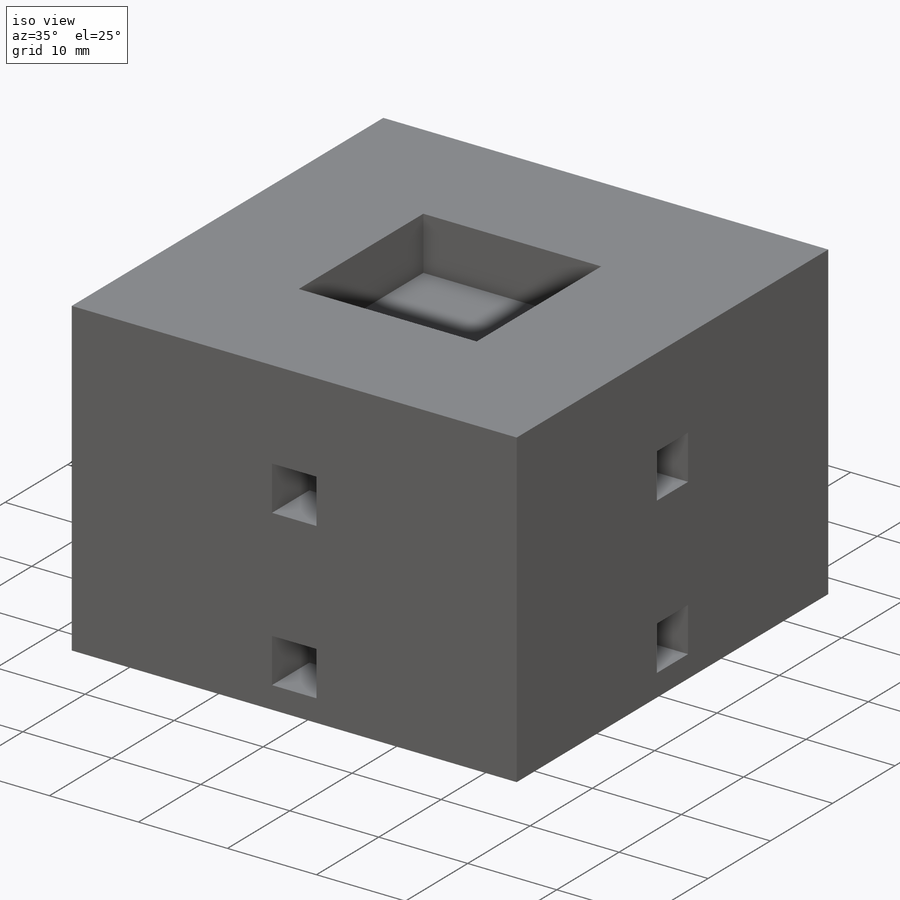
[diagram: iso view]
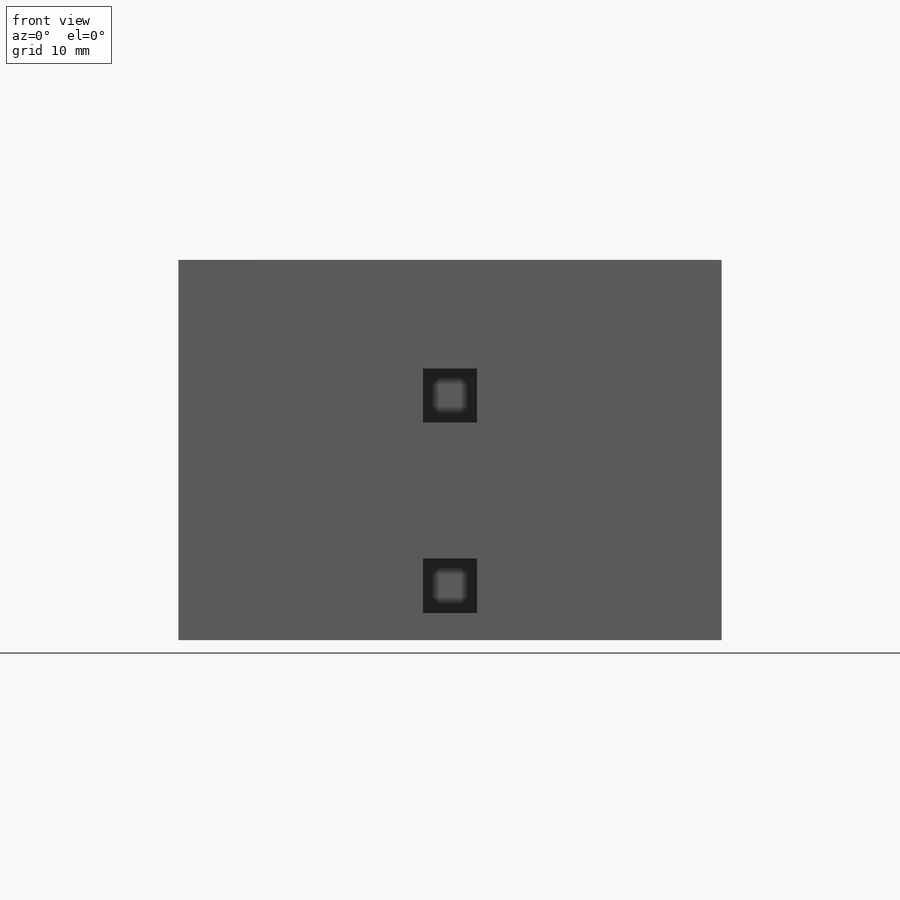
[diagram: front view]
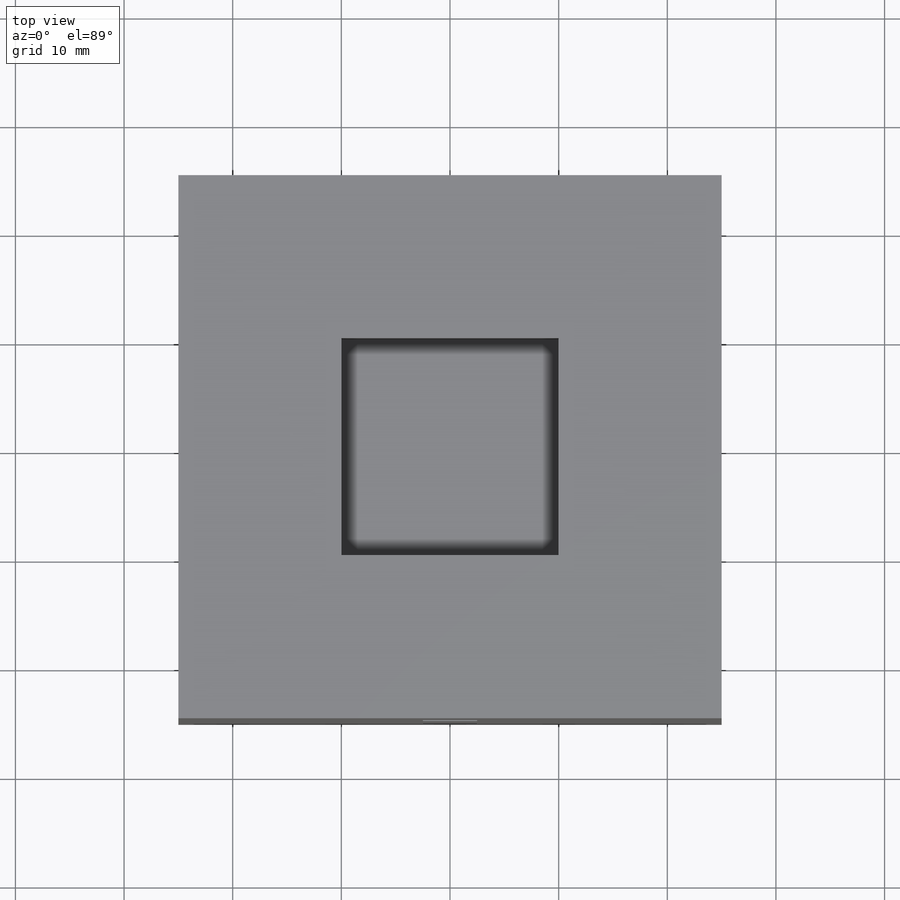
[diagram: top view]
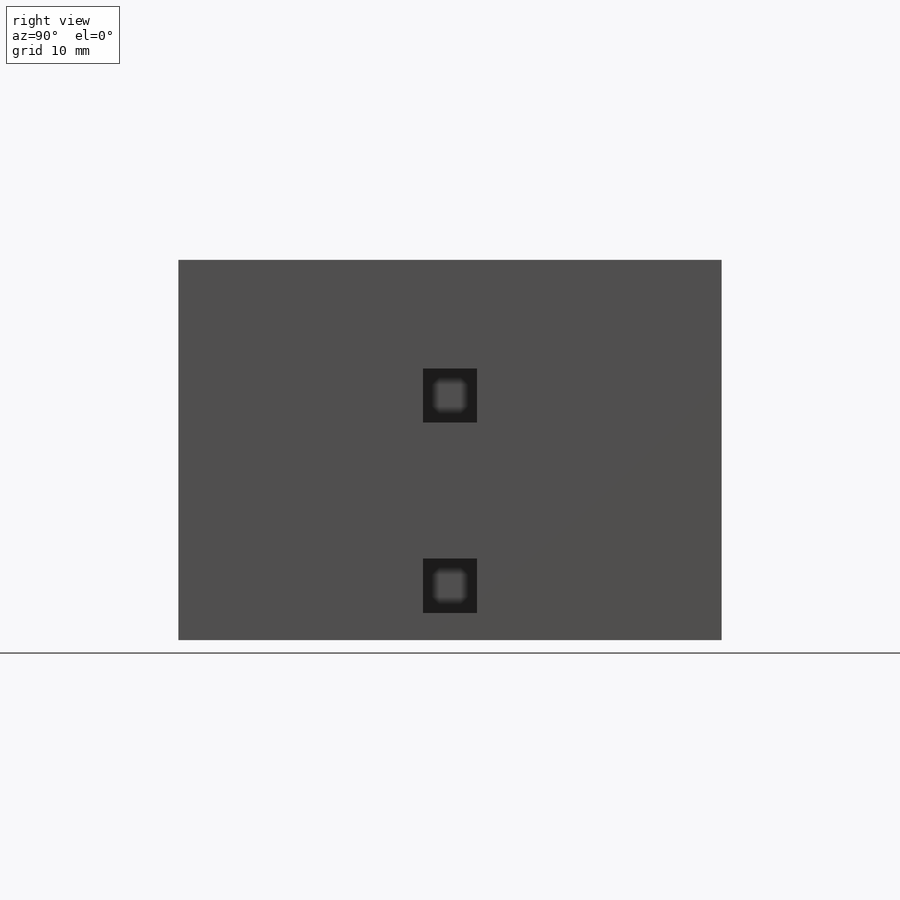
[diagram: right view]
SOLIDWORKS PART (.sldprt)
format: sldprt  version: not decoded by parser v0  size: 308,224 bytes
history: native  units: mm
features: sketch x7, cut_extrude x6, material x1, extrude x1 (+13 scaffold rows collapsed)
feature tree (28):
  scaffold x13  (default folders/planes/origin — collapsed)
  material  "Material <not specified>"
  sketch  "Sketch1"  dims[D1=50.0mm]
  extrude  "Boss-Extrude1"  Depth=35mm
  sketch  "Sketch3"  dims[D1=22.5mm D2=2.5mm D3=5.0mm D4=5.0mm D5=22.5mm D6=5.0mm D7=5.0mm D8=10.0mm D9=10.0mm D10=12.5mm]
  cut_extrude  "Cut-Extrude2"  Depth=6mm
  sketch  "Sketch4"  dims[c1.D1=5.0mm c1.D2=5.0mm c1.D3=5.0mm c1.D4=5.0mm c1.D5=22.5mm c1.D6=22.5mm c1.D7=2.5mm c2.D1=5.0mm c2.D2=5.0mm c2.D3=5.0mm c2.D4=5.0mm c2.D5=12.5mm c2.D6=22.5mm c2.D7=22.5mm c2.D8=10.0mm c2.D9=10.0mm c2.D10=2.5mm]
  cut_extrude  "Cut-Extrude3"  Depth=5mm
  sketch  "Sketch5"  dims[D1=5.0mm D2=5.0mm D3=5.0mm D4=5.0mm D5=12.5mm D6=22.5mm D7=22.5mm D8=2.5mm D9=10.0mm]
  cut_extrude  "Cut-Extrude4"  Depth=6mm
  sketch  "Sketch6"  dims[D1=5.0mm D2=5.0mm D3=5.0mm D4=5.0mm D5=12.5mm D6=22.5mm D7=22.5mm D8=2.5mm D9=10.0mm D10=10.0mm]
  cut_extrude  "Cut-Extrude5"  Depth=6mm
  sketch  "Sketch7"  dims[D1=20.0mm]
  cut_extrude  "Cut-Extrude6"  Depth=6mm
  sketch  "Sketch8"  dims[D1=20.0mm]
  cut_extrude  "Cut-Extrude7"  Depth=6mm
decode coverage: 14 of 14 modeling features carry decoded parameters
note: suppression state not decoded; provenance and decode notes live in map.json
